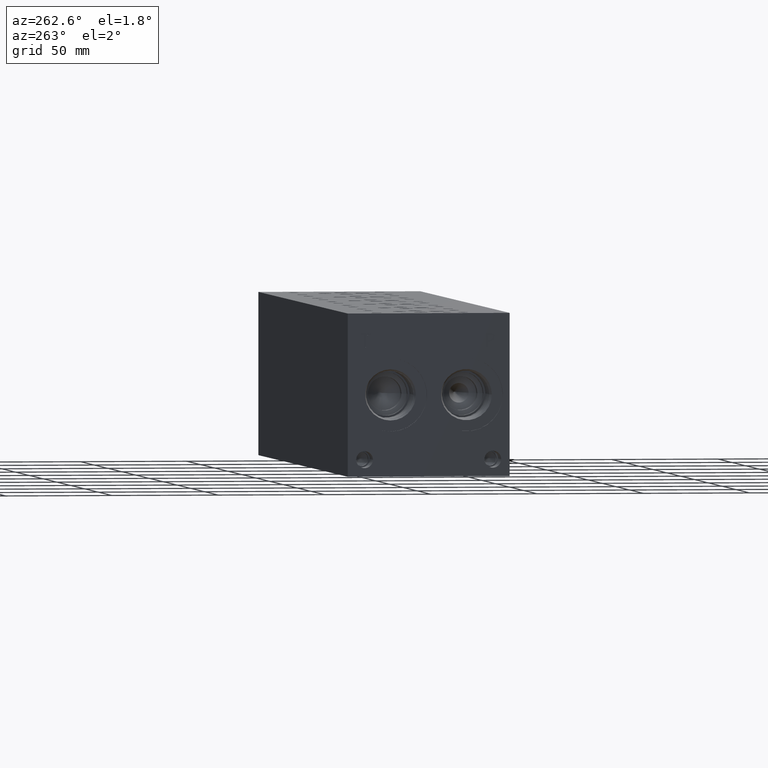
[diagram: clean part render]
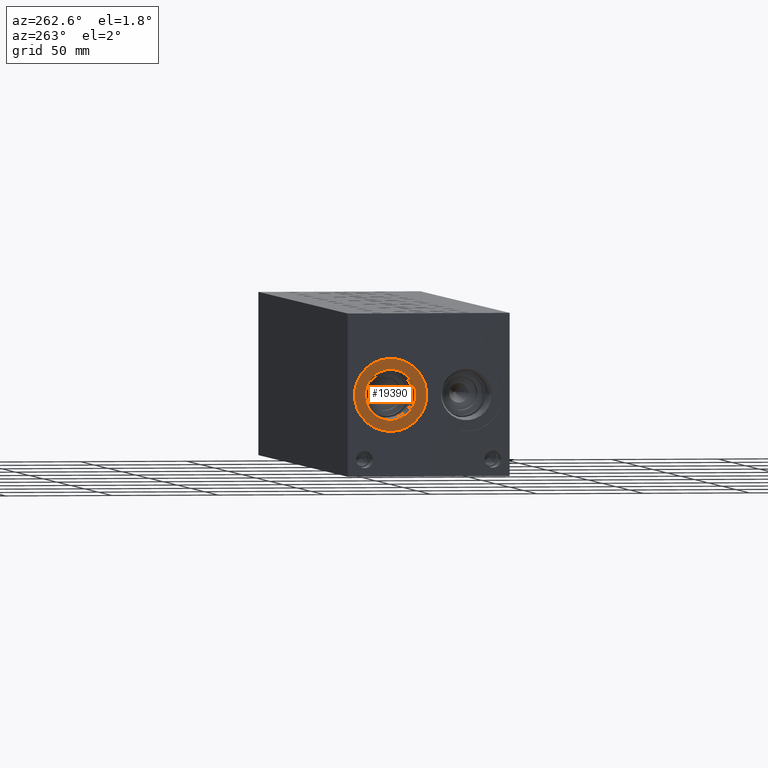
[diagram: same view with one face highlighted and labeled with its STEP entity id]
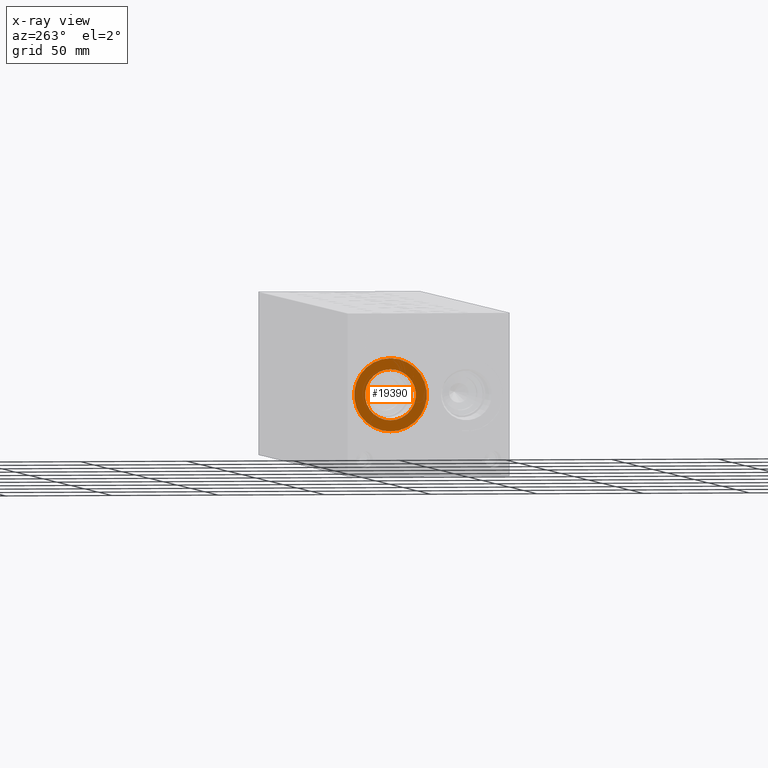
[diagram: x-ray of the same camera — body ghosted, the highlighted face saturated]
A machine part, auxiliary view. The second image highlights one B-rep face of the part: STEP entity #19390.
The next image is the same camera in x-ray: the body ghosted, the highlighted face saturated — about 0% of this face is hidden behind the body in this view.
In plain terms, the highlighted planar face has unit normal (1, 0, 0).
Its self-contained STEP definition (entity closure, byte-faithful):
#952=CIRCLE('',#20821,17.0688);
#953=CIRCLE('',#20822,17.0688);
#954=CIRCLE('',#20824,11.9507);
#955=CIRCLE('',#20825,11.9507);
#1106=FACE_BOUND('',#4037,.T.);
#2873=FACE_OUTER_BOUND('',#4036,.T.);
#4036=EDGE_LOOP('',(#17126,#17127));
#4037=EDGE_LOOP('',(#17128,#17129));
#9165=VERTEX_POINT('',#33917);
#9166=VERTEX_POINT('',#33919);
#9167=VERTEX_POINT('',#33923);
#9168=VERTEX_POINT('',#33924);
#11864=EDGE_CURVE('',#9165,#9166,#952,.T.);
#11865=EDGE_CURVE('',#9166,#9165,#953,.T.);
#11866=EDGE_CURVE('',#9167,#9168,#954,.T.);
#11867=EDGE_CURVE('',#9168,#9167,#955,.T.);
#17126=ORIENTED_EDGE('',*,*,#11865,.F.);
#17127=ORIENTED_EDGE('',*,*,#11864,.F.);
#17128=ORIENTED_EDGE('',*,*,#11866,.T.);
#17129=ORIENTED_EDGE('',*,*,#11867,.T.);
#17757=PLANE('',#20823);
#19390=ADVANCED_FACE('',(#2873,#1106),#17757,.F.);
#20821=AXIS2_PLACEMENT_3D('',#33920,#25241,#25242);
#20822=AXIS2_PLACEMENT_3D('',#33921,#25243,#25244);
#20823=AXIS2_PLACEMENT_3D('',#33922,#25245,#25246);
#20824=AXIS2_PLACEMENT_3D('',#33925,#25247,#25248);
#20825=AXIS2_PLACEMENT_3D('',#33926,#25249,#25250);
#25241=DIRECTION('center_axis',(1.,0.,0.));
#25242=DIRECTION('ref_axis',(0.,0.,-1.));
#25243=DIRECTION('center_axis',(1.,0.,0.));
#25244=DIRECTION('ref_axis',(0.,0.,-1.));
#25245=DIRECTION('center_axis',(1.,0.,0.));
#25246=DIRECTION('ref_axis',(0.,0.,-1.));
#25247=DIRECTION('center_axis',(1.,0.,0.));
#25248=DIRECTION('ref_axis',(0.,0.,-1.));
#25249=DIRECTION('center_axis',(1.,0.,0.));
#25250=DIRECTION('ref_axis',(0.,0.,-1.));
#33917=CARTESIAN_POINT('',(0.7874,55.9562,21.0312));
#33919=CARTESIAN_POINT('',(0.7874,55.9562,55.1688));
#33920=CARTESIAN_POINT('Origin',(0.7874,55.9562,38.1));
#33921=CARTESIAN_POINT('Origin',(0.7874,55.9562,38.1));
#33922=CARTESIAN_POINT('Origin',(0.7874,55.9562,50.0507));
#33923=CARTESIAN_POINT('',(0.7874,55.9562,50.0507));
#33924=CARTESIAN_POINT('',(0.787399999999999,55.9562,26.1493));
#33925=CARTESIAN_POINT('Origin',(0.7874,55.9562,38.1));
#33926=CARTESIAN_POINT('Origin',(0.7874,55.9562,38.1));